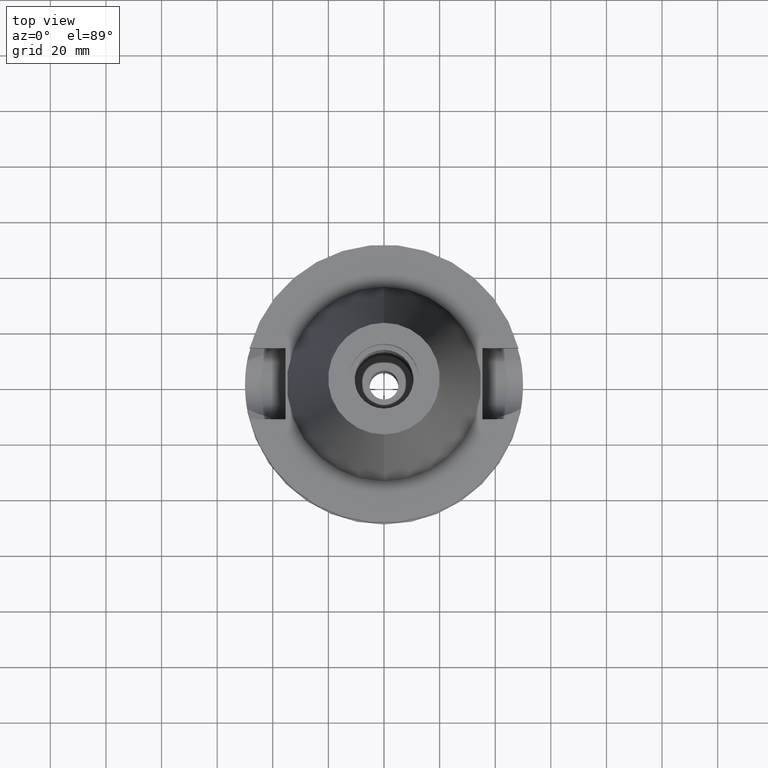
[diagram: clean part render]
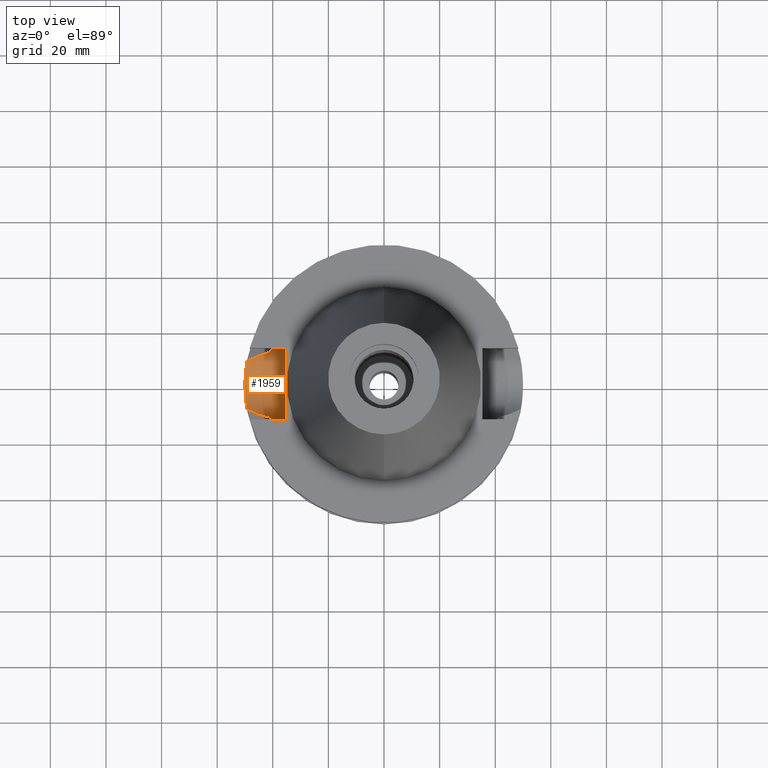
[diagram: same view with one face highlighted and labeled with its STEP entity id]
A machine part, top view. The second image highlights one B-rep face of the part: STEP entity #1959.
In plain terms, the highlighted cylindrical surface (edge-blend (fillet) strip) has radius 12.85 mm, axis along (-1, 0, 0).
Its self-contained STEP definition (entity closure, byte-faithful):
#19 = DIRECTION ( 'NONE',  ( 1.000000000000000000, 3.301887120261000215E-14, -2.502482870091999982E-14 ) ) ;
#46 = AXIS2_PLACEMENT_3D ( 'NONE', #970, #2109, #2362 ) ;
#54 = FACE_OUTER_BOUND ( 'NONE', #2437, .T. ) ;
#69 = CARTESIAN_POINT ( 'NONE',  ( -40.59188398425018818, 12.59182459259148956, -23.71305796896682949 ) ) ;
#83 = CARTESIAN_POINT ( 'NONE',  ( -44.02317738689114890, -10.87403857729488266, -28.04668195196335745 ) ) ;
#91 = CARTESIAN_POINT ( 'NONE',  ( -49.54042289469717986, 6.763708972659363994, -32.07601203804075141 ) ) ;
#93 = ORIENTED_EDGE ( 'NONE', *, *, #3274, .T. ) ;
#109 = CARTESIAN_POINT ( 'NONE',  ( -49.55544356040507381, -6.652706688688222236, -32.14381806456300694 ) ) ;
#125 = CARTESIAN_POINT ( 'NONE',  ( -49.98172387698324570, -1.530259642568234435, -33.93210970177366903 ) ) ;
#139 = CARTESIAN_POINT ( 'NONE',  ( -49.99945721727291925, -0.7714997712251454587, -33.99824750167787357 ) ) ;
#156 = CARTESIAN_POINT ( 'NONE',  ( -49.79192014176520331, -4.556612150855162469, -33.16498836658180949 ) ) ;
#171 = ORIENTED_EDGE ( 'NONE', *, *, #2546, .T. ) ;
#203 = CARTESIAN_POINT ( 'NONE',  ( -46.98608460562536493, 9.746497362722356783, -29.57066985813888849 ) ) ;
#255 = CARTESIAN_POINT ( 'NONE',  ( -42.65268896415089728, 11.30686705430883876, -27.34061466215453962 ) ) ;
#315 = CARTESIAN_POINT ( 'NONE',  ( -40.74530522851353709, -12.08734613714425876, -25.53455770065779618 ) ) ;
#332 = CARTESIAN_POINT ( 'NONE',  ( -40.85052569294000335, -11.72538061688000077, -26.40718074535000426 ) ) ;
#336 = CARTESIAN_POINT ( 'NONE',  ( -40.54944727710435615, 12.72806419699667480, -22.93049076237651462 ) ) ;
#353 = CARTESIAN_POINT ( 'NONE',  ( -40.79434743164174648, -11.92110232362476019, -25.97065181136010992 ) ) ;
#359 = CARTESIAN_POINT ( 'NONE',  ( -45.34821777572392421, -10.37745020757148851, -28.72832977483624362 ) ) ;
#366 = CARTESIAN_POINT ( 'NONE',  ( -49.55452737808793984, -6.659527011948107145, -32.13968720375613231 ) ) ;
#379 = CARTESIAN_POINT ( 'NONE',  ( -49.50767232412813001, 6.999135335235421529, -31.92695211162289226 ) ) ;
#396 = CARTESIAN_POINT ( 'NONE',  ( -49.79407851259986018, -4.532968099389986349, -33.17392864052052914 ) ) ;
#408 = CARTESIAN_POINT ( 'NONE',  ( -46.76100015155950018, -9.808647224879452509, -29.45463810972458063 ) ) ;
#417 = CARTESIAN_POINT ( 'NONE',  ( -49.55619131752131068, 6.647123698526790747, -32.14719460435098597 ) ) ;
#426 = CARTESIAN_POINT ( 'NONE',  ( -48.08476217232386318, -9.198729150365894114, -30.13404995585145230 ) ) ;
#433 = CARTESIAN_POINT ( 'NONE',  ( -49.91457795822584842, 3.009609489299341689, -33.66678711838933680 ) ) ;
#481 = B_SPLINE_CURVE_WITH_KNOTS ( 'NONE', 3,
 ( #2739, #255, #1111, #203, #1919, #553 ),
 .UNSPECIFIED., .F., .F.,
 ( 4, 2, 4 ),
 ( 0.0000000000000000000, 0.5000000000000000000, 1.000000000000000000 ),
 .UNSPECIFIED. ) ;
#542 = B_SPLINE_CURVE_WITH_KNOTS ( 'NONE', 3,
 ( #332, #353, #315, #908, #2287, #2857, #616, #1212, #1473, #3122, #2841, #2325, #2309, #853 ),
 .UNSPECIFIED., .F., .F.,
 ( 4, 2, 2, 1, 1, 2, 2, 4 ),
 ( 0.0000000000000000000, 0.2499999999999908407, 0.3749999999999861222, 0.4374999999999826250, 0.4687499999999819034, 0.4843749999999814593, 0.4999999999999810707, 1.000000000000000000 ),
 .UNSPECIFIED. ) ;
#553 = CARTESIAN_POINT ( 'NONE',  ( -49.26250064874000145, 8.556052234130000045, -30.73730776426999967 ) ) ;
#594 = CARTESIAN_POINT ( 'NONE',  ( -49.26250064874000145, 8.556052234130000045, -30.73730776426999967 ) ) ;
#616 = CARTESIAN_POINT ( 'NONE',  ( -40.62482961095668088, -12.48525133053583147, -24.19329755006814153 ) ) ;
#667 = CARTESIAN_POINT ( 'NONE',  ( -49.79157753244373197, 4.560342035804302974, -33.16357187943125950 ) ) ;
#683 = CARTESIAN_POINT ( 'NONE',  ( -49.99914261769718138, 0.2981666961813739802, -33.99713625435125408 ) ) ;
#692 = CARTESIAN_POINT ( 'NONE',  ( -49.26250064874000145, -8.556052234130000045, -30.73730776426999967 ) ) ;
#702 = CARTESIAN_POINT ( 'NONE',  ( -49.99991273105889178, -0.006584162486277838483, -34.00001921904481605 ) ) ;
#708 = LINE ( 'NONE', #1598, #893 ) ;
#714 = CARTESIAN_POINT ( 'NONE',  ( -48.69609657120090418, -8.881092247657695893, -30.44723057030673630 ) ) ;
#722 = CARTESIAN_POINT ( 'NONE',  ( -49.75884625836216912, -4.915990746495896957, -33.02790654666368653 ) ) ;
#732 = CARTESIAN_POINT ( 'NONE',  ( -45.37149031604733551, -10.36869689420611884, -28.74030168721082745 ) ) ;
#737 = CARTESIAN_POINT ( 'NONE',  ( -49.86811357886771390, -3.630246827715032598, -33.47814103747965930 ) ) ;
#739 = ORIENTED_EDGE ( 'NONE', *, *, #1018, .F. ) ;
#800 = CARTESIAN_POINT ( 'NONE',  ( -40.51083188481999997, -12.84999999999999964, -21.14999999999999858 ) ) ;
#853 = CARTESIAN_POINT ( 'NONE',  ( -40.51083188481999997, -12.84999999999999964, -21.14999999999999858 ) ) ;
#893 = VECTOR ( 'NONE', #2933, 1000.000000000000000 ) ;
#907 = LINE ( 'NONE', #2562, #2494 ) ;
#908 = CARTESIAN_POINT ( 'NONE',  ( -40.68244601107633684, -12.29666625011165415, -24.88710380518764254 ) ) ;
#944 = CARTESIAN_POINT ( 'NONE',  ( -49.99991026463841592, 0.01811504222123058727, -34.00000834934209593 ) ) ;
#961 = CARTESIAN_POINT ( 'NONE',  ( -49.55578272001485374, 6.650167653862848027, -32.14535337079519195 ) ) ;
#970 = CARTESIAN_POINT ( 'NONE',  ( -35.39999999999999858, 1.497743035356999952E-14, -21.14999999999999858 ) ) ;
#976 = CARTESIAN_POINT ( 'NONE',  ( -49.81925707083791366, -4.248792679687765528, -33.27798428479984949 ) ) ;
#995 = CARTESIAN_POINT ( 'NONE',  ( -49.61147438036912405, -6.221391045947914478, -32.39396909386065460 ) ) ;
#1007 = CARTESIAN_POINT ( 'NONE',  ( -45.40636621858223521, -10.35555561956571680, -28.75824239177519104 ) ) ;
#1015 = CARTESIAN_POINT ( 'NONE',  ( -49.66479649953236475, -5.781788914418916292, -32.62740715261897151 ) ) ;
#1018 = EDGE_CURVE ( 'NONE', #1946, #3217, #907, .T. ) ;
#1092 = EDGE_CURVE ( 'NONE', #3661, #3374, #708, .T. ) ;
#1111 = CARTESIAN_POINT ( 'NONE',  ( -44.24020444141127228, 10.80653343367503361, -28.15861804125367840 ) ) ;
#1185 = DIRECTION ( 'NONE',  ( -1.000000000000000000, 0.0000000000000000000, 0.0000000000000000000 ) ) ;
#1197 = CARTESIAN_POINT ( 'NONE',  ( -40.59544671389546977, 12.58032818125508001, -23.76890350620164227 ) ) ;
#1203 = CARTESIAN_POINT ( 'NONE',  ( -40.51083188481999997, 12.84999999999999964, -21.14999999999999858 ) ) ;
#1212 = CARTESIAN_POINT ( 'NONE',  ( -40.61156896389279325, -12.52821669071489552, -24.00856318994577876 ) ) ;
#1225 = CARTESIAN_POINT ( 'NONE',  ( -49.45236745627918395, 7.380351696184251686, -31.67104300691285346 ) ) ;
#1245 = CARTESIAN_POINT ( 'NONE',  ( -49.38342353106851590, -7.859824183338604442, -31.35864627930563842 ) ) ;
#1260 = CARTESIAN_POINT ( 'NONE',  ( -49.79243189272254000, 4.551013503808113647, -33.16711017034604936 ) ) ;
#1274 = CARTESIAN_POINT ( 'NONE',  ( -49.76553265362613843, 4.837331714321743803, -33.05535982780286020 ) ) ;
#1295 = CARTESIAN_POINT ( 'NONE',  ( -49.96617431557933742, 1.860606362741110686, -33.87053246622234326 ) ) ;
#1345 = VERTEX_POINT ( 'NONE', #1616 ) ;
#1363 = ORIENTED_EDGE ( 'NONE', *, *, #1625, .T. ) ;
#1372 = EDGE_CURVE ( 'NONE', #1345, #1880, #481, .T. ) ;
#1438 = B_SPLINE_CURVE_WITH_KNOTS ( 'NONE', 3,
 ( #692, #714, #426, #2956, #408, #1546, #1563, #2689, #3557, #1007, #732, #359, #1495, #83, #2343, #3486 ),
 .UNSPECIFIED., .F., .F.,
 ( 4, 2, 2, 1, 1, 1, 1, 2, 2, 4 ),
 ( 0.0000000000000000000, 0.2500000000000449085, 0.3750000000000670020, 0.4375000000000773270, 0.4687500000000813793, 0.4843750000000828781, 0.4921875000000831557, 0.4960937500000834333, 0.5000000000000837108, 1.000000000000000000 ),
 .UNSPECIFIED. ) ;
#1456 = CARTESIAN_POINT ( 'NONE',  ( -40.51818719763605969, 12.82722225432310204, -22.03686830847411215 ) ) ;
#1473 = CARTESIAN_POINT ( 'NONE',  ( -40.60613670648186968, -12.54578755583301231, -23.92964714799551729 ) ) ;
#1494 = CARTESIAN_POINT ( 'NONE',  ( -40.54025313608427439, 12.75731810731626759, -22.70684014861360467 ) ) ;
#1495 = CARTESIAN_POINT ( 'NONE',  ( -45.33508213167343825, -10.38238089992274737, -28.72157240906432207 ) ) ;
#1508 = CARTESIAN_POINT ( 'NONE',  ( -40.73816957792652715, 12.11682261037110386, -25.53412604446968004 ) ) ;
#1520 = CARTESIAN_POINT ( 'NONE',  ( -49.72636382761496066, 5.225848877987472108, -32.89088499922382880 ) ) ;
#1538 = CARTESIAN_POINT ( 'NONE',  ( -49.64409737584191618, -5.957143207088868131, -32.53749906394791225 ) ) ;
#1546 = CARTESIAN_POINT ( 'NONE',  ( -46.23510387039483760, -10.02918338276918497, -29.18439476897249207 ) ) ;
#1553 = CARTESIAN_POINT ( 'NONE',  ( -49.57459129012687526, -6.508703536934090650, -32.22988766491158685 ) ) ;
#1563 = CARTESIAN_POINT ( 'NONE',  ( -45.96794351218709096, -10.13819903265735256, -29.04706381825963746 ) ) ;
#1570 = CARTESIAN_POINT ( 'NONE',  ( -49.86275738944134162, 3.780006176408522656, -33.45822970190181422 ) ) ;
#1598 = CARTESIAN_POINT ( 'NONE',  ( -35.39999999999999858, -12.84999999999999964, -21.14999999999999858 ) ) ;
#1600 = ORIENTED_EDGE ( 'NONE', *, *, #1092, .F. ) ;
#1616 = CARTESIAN_POINT ( 'NONE',  ( -40.85052569294000335, 11.72538061688000077, -26.40718074535000426 ) ) ;
#1625 = EDGE_CURVE ( 'NONE', #1880, #2837, #2513, .T. ) ;
#1675 = ORIENTED_EDGE ( 'NONE', *, *, #1372, .T. ) ;
#1700 = CYLINDRICAL_SURFACE ( 'NONE', #3267, 12.85000000000000320 ) ;
#1803 = CARTESIAN_POINT ( 'NONE',  ( -49.79071482015626771, -4.569755982003512074, -33.15999402029137144 ) ) ;
#1819 = CARTESIAN_POINT ( 'NONE',  ( -49.99975914031625734, 0.1346460503438865475, -33.99944274152966273 ) ) ;
#1838 = CARTESIAN_POINT ( 'NONE',  ( -49.48057468194641473, -7.209465216986186142, -31.80614402741527158 ) ) ;
#1854 = CARTESIAN_POINT ( 'NONE',  ( -49.99174828282506411, 0.9098557509895999207, -33.96916052060970515 ) ) ;
#1870 = CARTESIAN_POINT ( 'NONE',  ( -49.55692994461239920, -6.641624362686437522, -32.15051670365527769 ) ) ;
#1880 = VERTEX_POINT ( 'NONE', #3112 ) ;
#1919 = CARTESIAN_POINT ( 'NONE',  ( -48.20253664736594601, 9.164329481786296583, -30.19445965385756736 ) ) ;
#1946 = VERTEX_POINT ( 'NONE', #1203 ) ;
#1959 = ADVANCED_FACE ( 'NONE', ( #54 ), #1700, .F. ) ;
#1997 = EDGE_CURVE ( 'NONE', #1946, #1345, #2750, .T. ) ;
#2061 = CARTESIAN_POINT ( 'NONE',  ( -40.58662608485431633, 12.60878154790536598, -23.62927549513685221 ) ) ;
#2088 = CARTESIAN_POINT ( 'NONE',  ( -49.32364745632502689, 8.203992129063008676, -31.05149864272872762 ) ) ;
#2103 = CARTESIAN_POINT ( 'NONE',  ( -49.99648034221863213, 0.6264769074970685248, -33.98713079865267872 ) ) ;
#2109 = DIRECTION ( 'NONE',  ( 1.000000000000000000, 0.0000000000000000000, 0.0000000000000000000 ) ) ;
#2120 = CARTESIAN_POINT ( 'NONE',  ( -49.70771372417988232, 5.400358768197232706, -32.81176076734335112 ) ) ;
#2138 = CARTESIAN_POINT ( 'NONE',  ( -49.26250064874000145, -8.556052234130000045, -30.73730776426999967 ) ) ;
#2156 = CARTESIAN_POINT ( 'NONE',  ( -49.55915644609927284, -6.625001972075820866, -32.16054684387425766 ) ) ;
#2238 = ORIENTED_EDGE ( 'NONE', *, *, #1997, .T. ) ;
#2287 = CARTESIAN_POINT ( 'NONE',  ( -40.66327695313978552, -12.35977177933932225, -24.67238797837626052 ) ) ;
#2294 = CARTESIAN_POINT ( 'NONE',  ( -40.85052569294000335, 11.72538061688000077, -26.40718074535000426 ) ) ;
#2309 = CARTESIAN_POINT ( 'NONE',  ( -40.51083188482000708, -12.84999999999998543, -22.03308001794205140 ) ) ;
#2316 = DIRECTION ( 'NONE',  ( 0.0000000000000000000, 0.0000000000000000000, -1.000000000000000000 ) ) ;
#2325 = CARTESIAN_POINT ( 'NONE',  ( -40.54025086427707691, -12.75862911298345992, -22.93149008171479508 ) ) ;
#2332 = CARTESIAN_POINT ( 'NONE',  ( -35.39999999999999858, 1.497743035356999952E-14, -21.14999999999999858 ) ) ;
#2343 = CARTESIAN_POINT ( 'NONE',  ( -42.53171517538773116, -11.33496060839026676, -27.27795605663153822 ) ) ;
#2352 = CARTESIAN_POINT ( 'NONE',  ( -49.75274246464316263, 4.966444650853582665, -33.00182567350483254 ) ) ;
#2360 = CARTESIAN_POINT ( 'NONE',  ( -40.57496101843508995, 12.64633755876300647, -23.43369807928905146 ) ) ;
#2362 = DIRECTION ( 'NONE',  ( 0.0000000000000000000, -1.000000000000000000, 0.0000000000000000000 ) ) ;
#2370 = CARTESIAN_POINT ( 'NONE',  ( -49.99987023248441176, 0.06470805798118797747, -33.99985819377584306 ) ) ;
#2386 = CARTESIAN_POINT ( 'NONE',  ( -49.47539491663157918, 7.224428802529296867, -31.77838169740817520 ) ) ;
#2403 = CARTESIAN_POINT ( 'NONE',  ( -49.84687376348730936, -3.916281446744601880, -33.39154925879472557 ) ) ;
#2423 = CARTESIAN_POINT ( 'NONE',  ( -49.55287295191029528, 6.671816821804714692, -32.13223749583940503 ) ) ;
#2437 = EDGE_LOOP ( 'NONE', ( #171, #1600, #3636, #739, #2238, #1675, #1363, #93 ) ) ;
#2494 = VECTOR ( 'NONE', #19, 1000.000000000000000 ) ;
#2513 = B_SPLINE_CURVE_WITH_KNOTS ( 'NONE', 3,
 ( #594, #2088, #3229, #1225, #2386, #379, #2697, #91, #3511, #2423, #3282, #961, #417, #2629, #2966, #2120, #1520, #2352, #1274, #2946, #2681, #3494, #667, #1260, #1570, #433, #1295, #2664, #1854, #2103, #683, #1819, #2370, #944, #702, #139, #125, #3526, #3544, #737, #2403, #976, #3214, #3563, #396, #156, #1803, #722, #2646, #1015, #1538, #995, #2928, #1553, #3246, #2156, #1870, #109, #366, #1838, #1245, #2138 ),
 .UNSPECIFIED., .F., .F.,
 ( 4, 2, 2, 1, 1, 1, 1, 2, 2, 2, 2, 1, 1, 1, 2, 2, 2, 2, 1, 1, 1, 2, 2, 2, 2, 1, 1, 1, 1, 2, 2, 2, 2, 1, 1, 1, 1, 2, 2, 4 ),
 ( 0.0000000000000000000, 0.06250000000003320955, 0.09375000000005014045, 0.1093750000000582034, 0.1171875000000618949, 0.1210937500000641431, 0.1230468750000651978, 0.1240234375000653921, 0.1250000000000655587, 0.1875000000000650868, 0.2187500000000646150, 0.2343750000000643652, 0.2421875000000645040, 0.2460937500000645872, 0.2480468750000644484, 0.2500000000000642819, 0.3750000000000537903, 0.4375000000000485723, 0.4687500000000459077, 0.4843750000000445755, 0.4921875000000439093, 0.4960937500000436318, 0.5000000000000432987, 0.6250000000000328626, 0.6875000000000276446, 0.7187500000000252021, 0.7343750000000237588, 0.7421875000000229816, 0.7460937500000228706, 0.7480468750000227596, 0.7500000000000226485, 0.8125000000000214273, 0.8437500000000207612, 0.8593750000000206501, 0.8671875000000205391, 0.8710937500000206501, 0.8730468750000205391, 0.8740234375000203171, 0.8750000000000200950, 1.000000000000000000 ),
 .UNSPECIFIED. ) ;
#2546 = EDGE_CURVE ( 'NONE', #2687, #3374, #542, .T. ) ;
#2562 = CARTESIAN_POINT ( 'NONE',  ( -40.51083188481999997, 12.84999999999999964, -21.14999999999999858 ) ) ;
#2567 = CARTESIAN_POINT ( 'NONE',  ( -40.65435955981745053, 12.39001970624488891, -24.66361747048510011 ) ) ;
#2586 = CARTESIAN_POINT ( 'NONE',  ( -40.56599673094051184, 12.67509433839780897, -23.26596311455570998 ) ) ;
#2593 = CIRCLE ( 'NONE', #46, 12.84999999999999964 ) ;
#2629 = CARTESIAN_POINT ( 'NONE',  ( -49.60488409825796197, 6.283811134045452995, -32.36654260424944596 ) ) ;
#2646 = CARTESIAN_POINT ( 'NONE',  ( -49.72374525072960694, -5.259370622793691830, -32.88078653133035090 ) ) ;
#2664 = CARTESIAN_POINT ( 'NONE',  ( -49.97901735205996232, 1.478661056077098301, -33.92031390547274583 ) ) ;
#2681 = CARTESIAN_POINT ( 'NONE',  ( -49.78669315015737595, 4.613394701858558378, -33.14333125216562337 ) ) ;
#2687 = VERTEX_POINT ( 'NONE', #3233 ) ;
#2689 = CARTESIAN_POINT ( 'NONE',  ( -45.64888504676686409, -10.26301799304105344, -28.88298579195093296 ) ) ;
#2697 = CARTESIAN_POINT ( 'NONE',  ( -49.52324508211840026, 6.888632652324810479, -31.99812721906809898 ) ) ;
#2739 = CARTESIAN_POINT ( 'NONE',  ( -40.85052569294000335, 11.72538061688000077, -26.40718074535000426 ) ) ;
#2750 = B_SPLINE_CURVE_WITH_KNOTS ( 'NONE', 3,
 ( #2862, #2902, #1456, #1494, #336, #2586, #2360, #2061, #69, #1197, #3204, #2567, #1508, #2294 ),
 .UNSPECIFIED., .F., .F.,
 ( 4, 2, 2, 1, 1, 2, 2, 4 ),
 ( 0.0000000000000000000, 0.2499999999999877875, 0.3749999999999826250, 0.4374999999999801270, 0.4687499999999798495, 0.4843749999999797939, 0.4999999999999796829, 1.000000000000000000 ),
 .UNSPECIFIED. ) ;
#2837 = VERTEX_POINT ( 'NONE', #3048 ) ;
#2841 = CARTESIAN_POINT ( 'NONE',  ( -40.60092750940732031, -12.56262654778352506, -23.85254111937892674 ) ) ;
#2857 = CARTESIAN_POINT ( 'NONE',  ( -40.63719938804874943, -12.44499676301189162, -24.35261212848416079 ) ) ;
#2862 = CARTESIAN_POINT ( 'NONE',  ( -40.51083188481999997, 12.84999999999999964, -21.14999999999999858 ) ) ;
#2902 = CARTESIAN_POINT ( 'NONE',  ( -40.51083188482000708, 12.85000000000002451, -21.59154171183185866 ) ) ;
#2928 = CARTESIAN_POINT ( 'NONE',  ( -49.59476930514845350, -6.353818073327051508, -32.32003745825041108 ) ) ;
#2933 = DIRECTION ( 'NONE',  ( -1.000000000000000000, 3.440913946376999995E-14, 0.0000000000000000000 ) ) ;
#2946 = CARTESIAN_POINT ( 'NONE',  ( -49.77975606409354725, 4.687841417378288078, -33.11454327590273294 ) ) ;
#2956 = CARTESIAN_POINT ( 'NONE',  ( -47.10036509200143939, -9.658284609629340878, -29.62890655079728930 ) ) ;
#2966 = CARTESIAN_POINT ( 'NONE',  ( -49.64857037762580916, 5.927508038958591463, -32.55786152300485270 ) ) ;
#3048 = CARTESIAN_POINT ( 'NONE',  ( -49.26250064874000145, -8.556052234130000045, -30.73730776426999967 ) ) ;
#3112 = CARTESIAN_POINT ( 'NONE',  ( -49.26250064874000145, 8.556052234130000045, -30.73730776426999967 ) ) ;
#3122 = CARTESIAN_POINT ( 'NONE',  ( -40.60257095199571609, -12.55731571366193577, -23.87709474182198122 ) ) ;
#3192 = EDGE_CURVE ( 'NONE', #3661, #3217, #2593, .T. ) ;
#3204 = CARTESIAN_POINT ( 'NONE',  ( -40.59736864107516396, 12.57412283048225099, -23.79851909554432510 ) ) ;
#3214 = CARTESIAN_POINT ( 'NONE',  ( -49.80473949750344076, -4.414664528154219170, -33.21804433592232186 ) ) ;
#3217 = VERTEX_POINT ( 'NONE', #3277 ) ;
#3229 = CARTESIAN_POINT ( 'NONE',  ( -49.37875750915796402, 7.862734581641410259, -31.32141353742820655 ) ) ;
#3233 = CARTESIAN_POINT ( 'NONE',  ( -40.85052569294000335, -11.72538061688000077, -26.40718074535000426 ) ) ;
#3246 = CARTESIAN_POINT ( 'NONE',  ( -49.56433009246671162, -6.586224382029129742, -32.18382597123364519 ) ) ;
#3267 = AXIS2_PLACEMENT_3D ( 'NONE', #2332, #1185, #2316 ) ;
#3274 = EDGE_CURVE ( 'NONE', #2837, #2687, #1438, .T. ) ;
#3277 = CARTESIAN_POINT ( 'NONE',  ( -35.39999999999999858, 12.84999999999999964, -21.14999999999999858 ) ) ;
#3282 = CARTESIAN_POINT ( 'NONE',  ( -49.55462058135353232, 6.658819815887609295, -32.14011575155983280 ) ) ;
#3374 = VERTEX_POINT ( 'NONE', #800 ) ;
#3467 = CARTESIAN_POINT ( 'NONE',  ( -35.39999999999999858, -12.84999999999999964, -21.14999999999999858 ) ) ;
#3486 = CARTESIAN_POINT ( 'NONE',  ( -40.85052569294000335, -11.72538061688000077, -26.40718074535000426 ) ) ;
#3494 = CARTESIAN_POINT ( 'NONE',  ( -49.78962876864832054, 4.581554300043165995, -33.15549828126852816 ) ) ;
#3511 = CARTESIAN_POINT ( 'NONE',  ( -49.54876419971746060, 6.702274093290727208, -32.11370156867130987 ) ) ;
#3526 = CARTESIAN_POINT ( 'NONE',  ( -49.92918642162116782, -2.674950105162380520, -33.72447902242291917 ) ) ;
#3544 = CARTESIAN_POINT ( 'NONE',  ( -49.90735102901254550, -3.057557831912482538, -33.63722763406720162 ) ) ;
#3557 = CARTESIAN_POINT ( 'NONE',  ( -45.48751296884563544, -10.32481386162941384, -28.79998385396536520 ) ) ;
#3563 = CARTESIAN_POINT ( 'NONE',  ( -49.79730340408376321, -4.497493828834364216, -33.18728234310407998 ) ) ;
#3636 = ORIENTED_EDGE ( 'NONE', *, *, #3192, .T. ) ;
#3661 = VERTEX_POINT ( 'NONE', #3467 ) ;